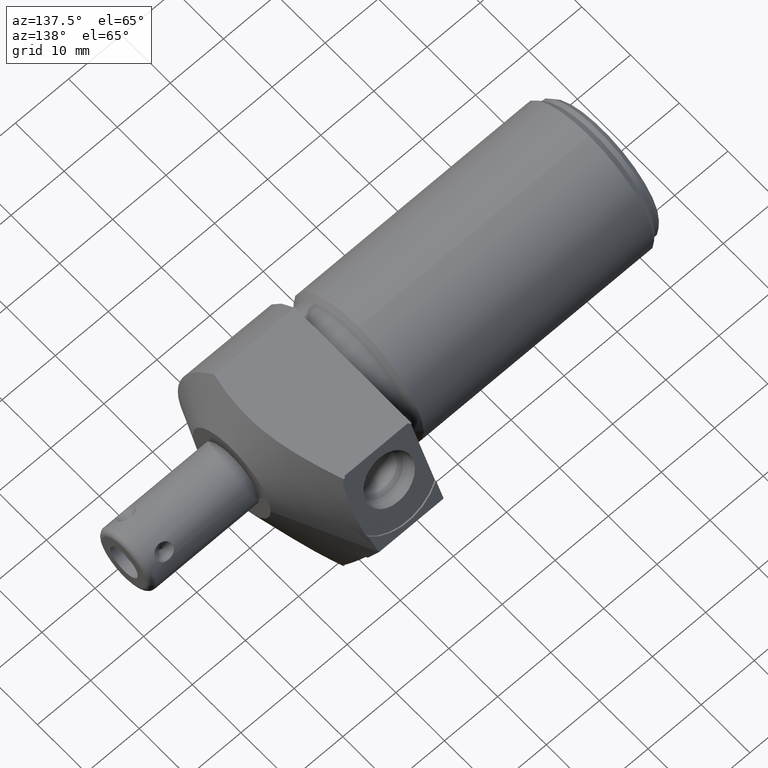
[diagram: clean part render]
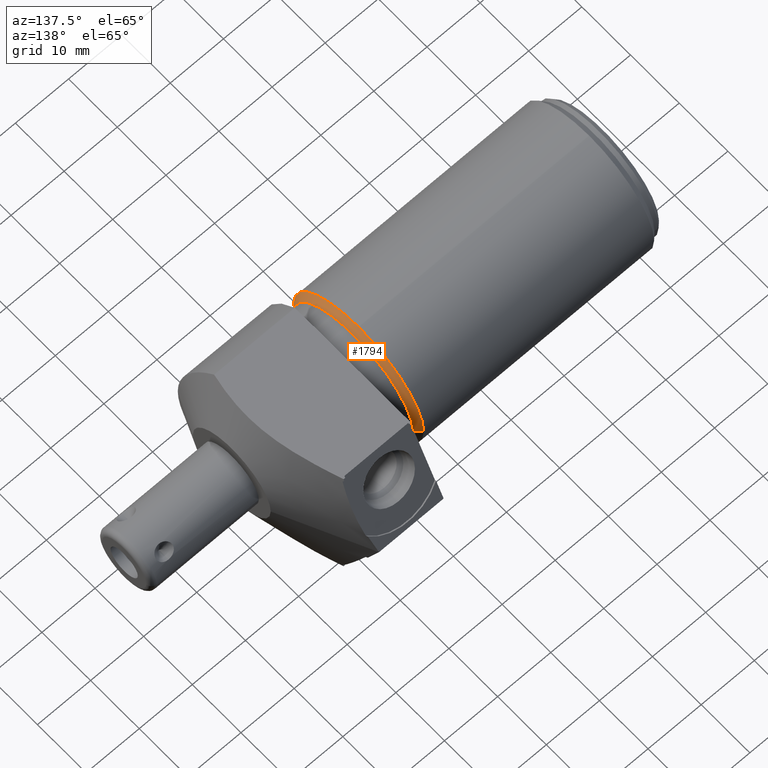
[diagram: same view with one face highlighted and labeled with its STEP entity id]
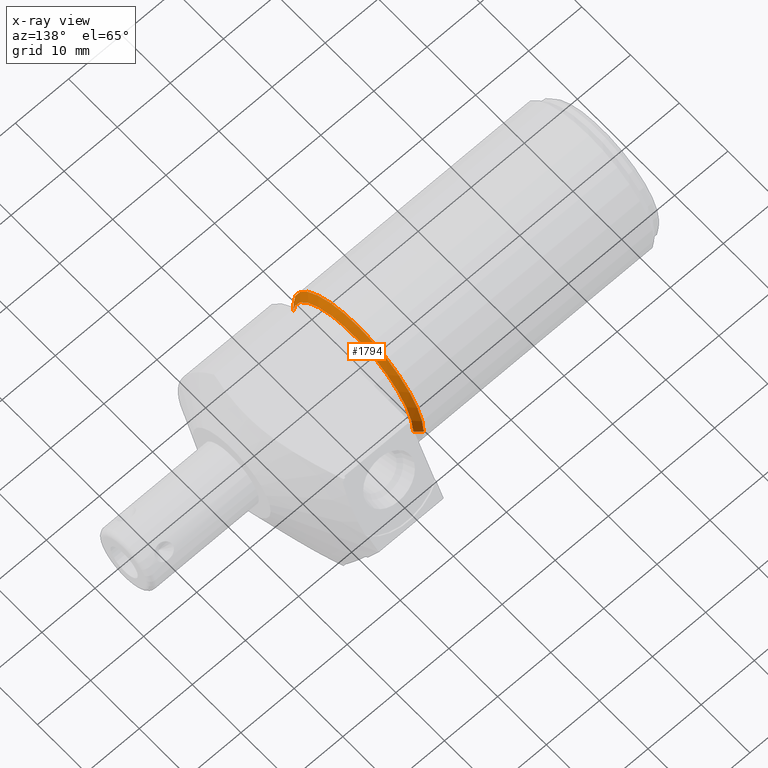
[diagram: x-ray of the same camera — body ghosted, the highlighted face saturated]
A machine part, auxiliary view. The second image highlights one B-rep face of the part: STEP entity #1794.
The next image is the same camera in x-ray: the body ghosted, the highlighted face saturated — about 0% of this face is hidden behind the body in this view.
In plain terms, the highlighted conical surface has half-angle 45 deg.
Its self-contained STEP definition (entity closure, byte-faithful):
#423=CARTESIAN_POINT('',(-1.5E-1,-1.87E-1,0.E0));
#424=DIRECTION('',(1.E0,0.E0,0.E0));
#425=DIRECTION('',(0.E0,1.E0,0.E0));
#426=AXIS2_PLACEMENT_3D('',#423,#424,#425);
#431=CARTESIAN_POINT('',(-1.91E-1,-1.87E-1,0.E0));
#432=DIRECTION('',(1.E0,0.E0,0.E0));
#433=DIRECTION('',(0.E0,0.E0,1.E0));
#434=AXIS2_PLACEMENT_3D('',#431,#432,#433);
#439=CARTESIAN_POINT('',(-1.91E-1,-1.87E-1,0.E0));
#440=DIRECTION('',(1.E0,0.E0,0.E0));
#441=DIRECTION('',(0.E0,1.E0,0.E0));
#442=AXIS2_PLACEMENT_3D('',#439,#440,#441);
#447=DIRECTION('',(7.071067811865E-1,-7.071067811865E-1,0.E0));
#448=VECTOR('',#447,5.798275605730E-2);
#449=CARTESIAN_POINT('',(-1.91E-1,3.39E-1,0.E0));
#450=LINE('',#449,#448);
#454=DIRECTION('',(7.071067811865E-1,7.071067811865E-1,0.E0));
#455=VECTOR('',#454,5.798275605730E-2);
#456=CARTESIAN_POINT('',(-1.91E-1,-7.13E-1,0.E0));
#457=LINE('',#456,#455);
#1439=CARTESIAN_POINT('',(-1.5E-1,2.98E-1,0.E0));
#1441=VERTEX_POINT('',#1439);
#1443=CARTESIAN_POINT('',(-1.5E-1,-6.72E-1,0.E0));
#1445=VERTEX_POINT('',#1443);
#1451=CARTESIAN_POINT('',(-1.91E-1,-1.87E-1,5.26E-1));
#1453=VERTEX_POINT('',#1451);
#1531=CARTESIAN_POINT('',(-1.91E-1,-7.13E-1,0.E0));
#1532=VERTEX_POINT('',#1531);
#1533=CARTESIAN_POINT('',(-1.91E-1,3.39E-1,0.E0));
#1534=VERTEX_POINT('',#1533);
#1778=CARTESIAN_POINT('',(-1.705E-1,-1.87E-1,0.E0));
#1779=DIRECTION('',(-1.E0,0.E0,0.E0));
#1780=DIRECTION('',(0.E0,1.E0,0.E0));
#1781=AXIS2_PLACEMENT_3D('',#1778,#1779,#1780);
#1782=CONICAL_SURFACE('',#1781,5.055E-1,4.5E1);
#1784=ORIENTED_EDGE('',*,*,#1783,.F.);
#1786=ORIENTED_EDGE('',*,*,#1785,.F.);
#1788=ORIENTED_EDGE('',*,*,#1787,.T.);
#1789=ORIENTED_EDGE('',*,*,#1773,.T.);
#1791=ORIENTED_EDGE('',*,*,#1790,.F.);
#1792=EDGE_LOOP('',(#1784,#1786,#1788,#1789,#1791));
#1793=FACE_OUTER_BOUND('',#1792,.F.);
#1794=ADVANCED_FACE('',(#1793),#1782,.T.);
#427=CIRCLE('',#426,4.85E-1);
#435=CIRCLE('',#434,5.26E-1);
#443=CIRCLE('',#442,5.26E-1);
#1773=EDGE_CURVE('',#1441,#1445,#427,.T.);
#1783=EDGE_CURVE('',#1453,#1532,#435,.T.);
#1785=EDGE_CURVE('',#1534,#1453,#443,.T.);
#1787=EDGE_CURVE('',#1534,#1441,#450,.T.);
#1790=EDGE_CURVE('',#1532,#1445,#457,.T.);